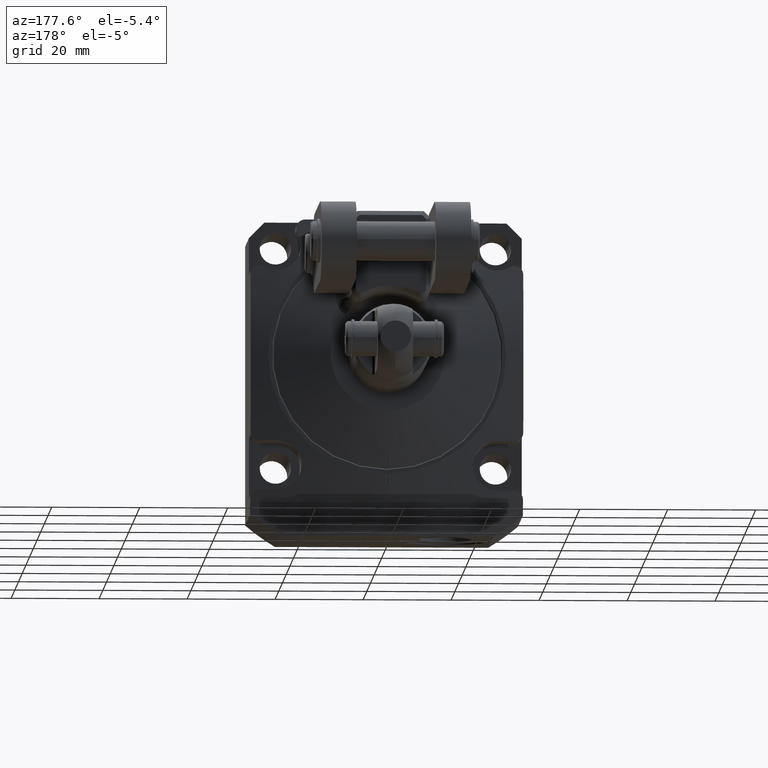
[diagram: clean part render]
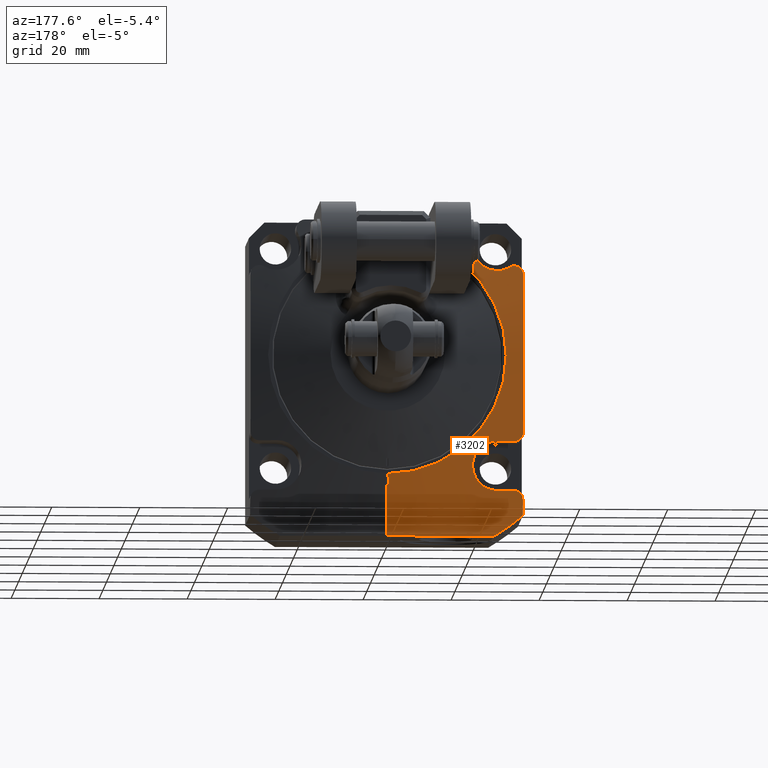
[diagram: same view with one face highlighted and labeled with its STEP entity id]
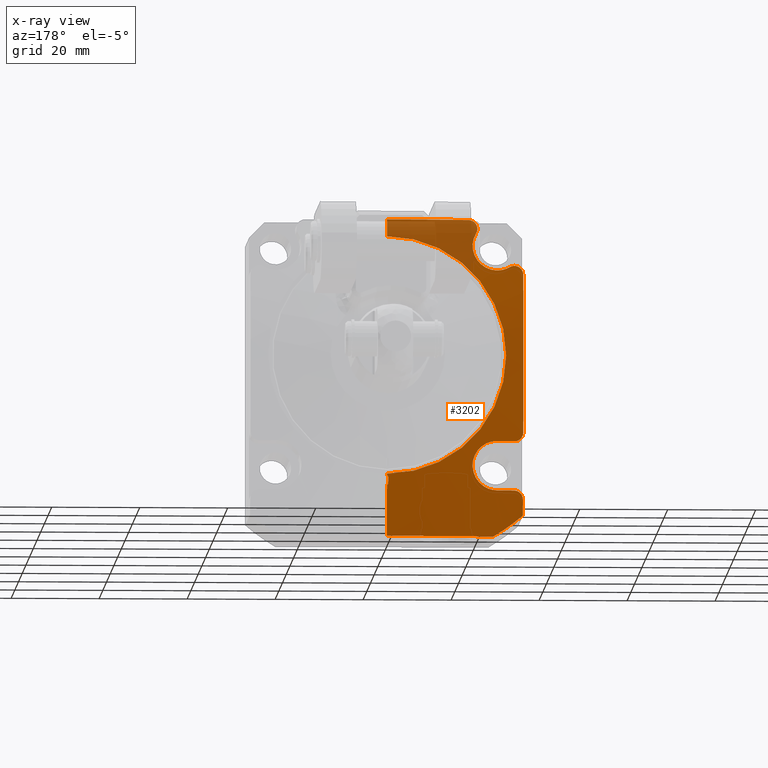
[diagram: x-ray of the same camera — body ghosted, the highlighted face saturated]
A machine part, auxiliary view. The second image highlights one B-rep face of the part: STEP entity #3202.
The next image is the same camera in x-ray: the body ghosted, the highlighted face saturated — about 15% of this face is hidden behind the body in this view.
In plain terms, the highlighted conical surface has half-angle 80 deg.
Its self-contained STEP definition (entity closure, byte-faithful):
#747=CARTESIAN_POINT('',(0.E0,1.060175145626E0,0.E0));
#748=DIRECTION('',(0.E0,-1.E0,0.E0));
#749=DIRECTION('',(-6.5088E-1,0.E0,-7.591806277823E-1));
#750=AXIS2_PLACEMENT_3D('',#747,#748,#749);
#1082=CARTESIAN_POINT('',(0.E0,1.199579130900E0,-1.084400712734E0));
#1097=CARTESIAN_POINT('',(0.E0,1.185860924864E0,-1.162200525222E0));
#1367=CARTESIAN_POINT('',(-1.1414E0,1.098318896118E0,-1.2035E0));
#1368=CARTESIAN_POINT('',(-1.114290929159E0,1.101608243191E0,-1.2035E0));
#1369=CARTESIAN_POINT('',(-1.061031755912E0,1.107947105747E0,-1.2035E0));
#1370=CARTESIAN_POINT('',(-1.009690802491E0,1.113808483846E0,-1.2035E0));
#1371=CARTESIAN_POINT('',(-9.845E-1,1.116620899816E0,-1.2035E0));
#1376=CARTESIAN_POINT('',(-1.2204E0,1.078625608446E0,-1.2825E0));
#1377=CARTESIAN_POINT('',(-1.2204E0,1.079679064940E0,-1.274252874675E0));
#1378=CARTESIAN_POINT('',(-1.217797744459E0,1.082093038357E0,
-1.257755515178E0));
#1379=CARTESIAN_POINT('',(-1.206424666769E0,1.086320344520E0,
-1.235359772559E0));
#1380=CARTESIAN_POINT('',(-1.188614549425E0,1.090764848129E0,
-1.217521549491E0));
#1381=CARTESIAN_POINT('',(-1.166153438891E0,1.094971450994E0,
-1.206098933734E0));
#1382=CARTESIAN_POINT('',(-1.149647818973E0,1.097318126325E0,-1.2035E0));
#1383=CARTESIAN_POINT('',(-1.1414E0,1.098318896118E0,-1.2035E0));
#1388=CARTESIAN_POINT('',(-1.2204E0,1.078625608446E0,-1.2825E0));
#1389=CARTESIAN_POINT('',(-1.2204E0,1.075721603347E0,-1.305234393049E0));
#1390=CARTESIAN_POINT('',(-1.2204E0,1.069743135455E0,-1.351462810067E0));
#1391=CARTESIAN_POINT('',(-1.2204E0,1.063421807781E0,-1.399210244665E0));
#1392=CARTESIAN_POINT('',(-1.2204E0,1.060175145626E0,-1.423463677092E0));
#1397=CARTESIAN_POINT('',(-9.542688300474E-1,1.060175145626E0,-1.614E0));
#1398=CARTESIAN_POINT('',(-8.732184138812E-1,1.067448646352E0,-1.614E0));
#1399=CARTESIAN_POINT('',(-7.122521230273E-1,1.080506054890E0,-1.614E0));
#1400=CARTESIAN_POINT('',(-4.767928833368E-1,1.094932953708E0,-1.614E0));
#1401=CARTESIAN_POINT('',(-2.393675511649E-1,1.104090646537E0,-1.614E0));
#1402=CARTESIAN_POINT('',(-7.998421784758E-2,1.106196487591E0,-1.614E0));
#1403=CARTESIAN_POINT('',(0.E0,1.106196487591E0,-1.614E0));
#1408=DIRECTION('',(0.E0,-1.736481776669E-1,-9.848077530122E-1));
#1409=VECTOR('',#1408,4.587692099253E-1);
#1410=CARTESIAN_POINT('',(0.E0,1.185860924864E0,-1.162200525222E0));
#1411=LINE('',#1410,#1409);
#1415=CARTESIAN_POINT('',(-9.583054859522E-3,1.187521949368E0,
-1.152740554533E0));
#1416=CARTESIAN_POINT('',(-9.583079634758E-3,1.187288388368E0,
-1.154065190348E0));
#1417=CARTESIAN_POINT('',(-9.060584980096E-3,1.186861859063E0,
-1.156488735613E0));
#1418=CARTESIAN_POINT('',(-6.903941518249E-3,1.186304644381E0,
-1.159664633900E0));
#1419=CARTESIAN_POINT('',(-3.684307100118E-3,1.185944706915E0,
-1.161721238546E0));
#1420=CARTESIAN_POINT('',(-1.293205266570E-3,1.185860924864E0,
-1.162200525222E0));
#1421=CARTESIAN_POINT('',(0.E0,1.185860924864E0,-1.162200525222E0));
#1426=CARTESIAN_POINT('',(-9.581894481622E-3,1.197904117912E0,
-1.093858216876E0));
#1427=CARTESIAN_POINT('',(-9.582029995993E-3,1.196753370346E0,
-1.100384679821E0));
#1428=CARTESIAN_POINT('',(-9.582296413478E-3,1.194449990667E0,
-1.113448285042E0));
#1429=CARTESIAN_POINT('',(-9.582682887298E-3,1.190989267719E0,
-1.133075730910E0));
#1430=CARTESIAN_POINT('',(-9.582932193043E-3,1.188678350267E0,
-1.146182053536E0));
#1431=CARTESIAN_POINT('',(-9.583054859522E-3,1.187521949368E0,
-1.152740554533E0));
#1436=CARTESIAN_POINT('',(0.E0,1.199579130900E0,-1.084400712734E0));
#1437=CARTESIAN_POINT('',(-1.305238752785E-3,1.199579130900E0,
-1.084400712734E0));
#1438=CARTESIAN_POINT('',(-3.710159623274E-3,1.199492945435E0,
-1.084885014403E0));
#1439=CARTESIAN_POINT('',(-6.982609886188E-3,1.199118091957E0,
-1.086994155909E0));
#1440=CARTESIAN_POINT('',(-9.124056162192E-3,1.198537029883E0,
-1.090272823199E0));
#1441=CARTESIAN_POINT('',(-9.581868420949E-3,1.198125417361E0,
-1.092603117415E0));
#1442=CARTESIAN_POINT('',(-9.581894481622E-3,1.197904117912E0,
-1.093858216876E0));
#1447=DIRECTION('',(-1.575943921262E-14,-1.736481776669E-1,-9.848077530122E-1));
#1448=VECTOR('',#1447,1.97E-2);
#1449=CARTESIAN_POINT('',(0.E0,1.203E0,-1.065E0));
#1450=LINE('',#1449,#1448);
#1454=DIRECTION('',(0.E0,-1.736481776669E-1,9.848077530122E-1));
#1455=VECTOR('',#1454,1.573911248423E-1);
#1456=CARTESIAN_POINT('',(0.E0,1.203E0,1.065E0));
#1457=LINE('',#1456,#1455);
#1461=CARTESIAN_POINT('',(0.E0,1.175669317990E0,1.22E0));
#1462=CARTESIAN_POINT('',(-4.963832308144E-2,1.175669317990E0,1.22E0));
#1463=CARTESIAN_POINT('',(-1.484258948280E-1,1.174597958380E0,1.22E0));
#1464=CARTESIAN_POINT('',(-2.953042230433E-1,1.169929776295E0,1.22E0));
#1465=CARTESIAN_POINT('',(-4.403871013855E-1,1.162500350986E0,1.22E0));
#1466=CARTESIAN_POINT('',(-5.845064690806E-1,1.152625583837E0,1.22E0));
#1467=CARTESIAN_POINT('',(-6.819810984913E-1,1.144451361543E0,1.22E0));
#1468=CARTESIAN_POINT('',(-7.309023856579E-1,1.140018143830E0,1.22E0));
#1473=CARTESIAN_POINT('',(-7.981312834197E-1,1.151220946163E0,
1.099511744966E0));
#1474=CARTESIAN_POINT('',(-8.023792531289E-1,1.149798682686E0,
1.106395291190E0));
#1475=CARTESIAN_POINT('',(-8.087152687614E-1,1.146998850180E0,
1.121419918563E0));
#1476=CARTESIAN_POINT('',(-8.109920010367E-1,1.143286847002E0,
1.145688176956E0));
#1477=CARTESIAN_POINT('',(-8.059298247709E-1,1.140377184131E0,
1.169375714302E0));
#1478=CARTESIAN_POINT('',(-7.940774391229E-1,1.138480748190E0,
1.190424952522E0));
#1479=CARTESIAN_POINT('',(-7.765091805685E-1,1.137737441018E0,
1.206981644710E0));
#1480=CARTESIAN_POINT('',(-7.548255635522E-1,1.138201195409E0,
1.217561347145E0));
#1481=CARTESIAN_POINT('',(-7.388832443451E-1,1.139294923201E0,1.22E0));
#1482=CARTESIAN_POINT('',(-7.309023856579E-1,1.140018143830E0,1.22E0));
#1487=CARTESIAN_POINT('',(-7.981312834197E-1,1.151220946163E0,
1.099511744966E0));
#1488=CARTESIAN_POINT('',(-7.894609193710E-1,1.154123872259E0,
1.085462009259E0));
#1489=CARTESIAN_POINT('',(-7.753496372646E-1,1.159867103217E0,
1.055462981855E0));
#1490=CARTESIAN_POINT('',(-7.647945247882E-1,1.167839744292E0,
1.006986781389E0));
#1491=CARTESIAN_POINT('',(-7.653153428927E-1,1.174679013903E0,
9.575181744862E-1));
#1492=CARTESIAN_POINT('',(-7.767571870162E-1,1.179916252696E0,
9.096517609083E-1));
#1493=CARTESIAN_POINT('',(-7.983328507148E-1,1.183187631600E0,
8.657890649145E-1));
#1494=CARTESIAN_POINT('',(-8.288943967029E-1,1.184279626647E0,
8.278674803769E-1));
#1495=CARTESIAN_POINT('',(-8.669601251099E-1,1.183122291722E0,
7.976035423600E-1));
#1496=CARTESIAN_POINT('',(-9.107718433823E-1,1.179808812352E0,
7.763761456664E-1));
#1497=CARTESIAN_POINT('',(-9.584282178444E-1,1.174562815118E0,
7.652262813753E-1));
#1498=CARTESIAN_POINT('',(-1.007628899861E0,1.167740237262E0,
7.648791955473E-1));
#1499=CARTESIAN_POINT('',(-1.055884556483E0,1.159790836035E0,
7.755054912923E-1));
#1500=CARTESIAN_POINT('',(-1.085790802442E0,1.154059074911E0,
7.896335753704E-1));
#1501=CARTESIAN_POINT('',(-1.099805704698E0,1.151160175604E0,
7.983130120978E-1));
#1506=CARTESIAN_POINT('',(-1.2204E0,1.139935231463E0,7.311496694299E-1));
#1507=CARTESIAN_POINT('',(-1.2204E0,1.139211472772E0,7.391364042759E-1));
#1508=CARTESIAN_POINT('',(-1.217957723005E0,1.138117197337E0,
7.550904486226E-1));
#1509=CARTESIAN_POINT('',(-1.207362850826E0,1.137654441237E0,
7.767867941637E-1));
#1510=CARTESIAN_POINT('',(-1.190783889815E0,1.138400543230E0,
7.943591205923E-1));
#1511=CARTESIAN_POINT('',(-1.169709458597E0,1.140301286755E0,
8.062040799562E-1));
#1512=CARTESIAN_POINT('',(-1.145998693723E0,1.143216238925E0,
8.112463430883E-1));
#1513=CARTESIAN_POINT('',(-1.121714485795E0,1.146933751959E0,
8.089378837423E-1));
#1514=CARTESIAN_POINT('',(-1.106687682307E0,1.149736679403E0,
8.025750246413E-1));
#1515=CARTESIAN_POINT('',(-1.099805704698E0,1.151160175604E0,
7.983130120978E-1));
#1520=CARTESIAN_POINT('',(-1.2204E0,1.139935231463E0,7.311496694299E-1));
#1521=CARTESIAN_POINT('',(-1.2204E0,1.144843051740E0,6.769914815009E-1));
#1522=CARTESIAN_POINT('',(-1.2204E0,1.153752859441E0,5.697359584724E-1));
#1523=CARTESIAN_POINT('',(-1.2204E0,1.164077935633E0,4.135100727669E-1));
#1524=CARTESIAN_POINT('',(-1.2204E0,1.171417218307E0,2.574341524689E-1));
#1525=CARTESIAN_POINT('',(-1.2204E0,1.175462210368E0,1.005520395260E-1));
#1526=CARTESIAN_POINT('',(-1.2204E0,1.175962019095E0,-5.705013868437E-2));
#1527=CARTESIAN_POINT('',(-1.2204E0,1.172875639359E0,-2.142650519396E-1));
#1528=CARTESIAN_POINT('',(-1.2204E0,1.166406008619E0,-3.706185634802E-1));
#1529=CARTESIAN_POINT('',(-1.2204E0,1.156901034157E0,-5.263308404294E-1));
#1530=CARTESIAN_POINT('',(-1.2204E0,1.148528556807E0,-6.328316876778E-1));
#1531=CARTESIAN_POINT('',(-1.2204E0,1.143889002284E0,-6.865E-1));
#1536=CARTESIAN_POINT('',(-1.1414E0,1.148456694158E0,-7.655E-1));
#1537=CARTESIAN_POINT('',(-1.149730314378E0,1.147236786776E0,-7.655E-1));
#1538=CARTESIAN_POINT('',(-1.166340169948E0,1.145056959626E0,
-7.628442139112E-1));
#1539=CARTESIAN_POINT('',(-1.188699582864E0,1.142835760369E0,
-7.513968622548E-1));
#1540=CARTESIAN_POINT('',(-1.206396554363E0,1.141833451756E0,
-7.336605200255E-1));
#1541=CARTESIAN_POINT('',(-1.217779690736E0,1.142126902009E0,
-7.113075880267E-1));
#1542=CARTESIAN_POINT('',(-1.2204E0,1.143173726617E0,-6.947739921969E-1));
#1543=CARTESIAN_POINT('',(-1.2204E0,1.143889002284E0,-6.865E-1));
#1548=CARTESIAN_POINT('',(-1.1414E0,1.148456694158E0,-7.655E-1));
#1549=CARTESIAN_POINT('',(-1.113839332614E0,1.152492731701E0,-7.655E-1));
#1550=CARTESIAN_POINT('',(-1.060128563122E0,1.160267443001E0,-7.655E-1));
#1551=CARTESIAN_POINT('',(-1.009239190007E0,1.167449151524E0,-7.655E-1));
#1552=CARTESIAN_POINT('',(-9.845E-1,1.170892829914E0,-7.655E-1));
#1557=CARTESIAN_POINT('',(-9.845E-1,1.170892829914E0,-7.655E-1));
#1558=CARTESIAN_POINT('',(-9.668143304058E-1,1.173354663069E0,-7.655E-1));
#1559=CARTESIAN_POINT('',(-9.315557886835E-1,1.177747081485E0,
-7.698032248155E-1));
#1560=CARTESIAN_POINT('',(-8.819775922452E-1,1.182234042671E0,
-7.885952571486E-1));
#1561=CARTESIAN_POINT('',(-8.384517070441E-1,1.184250302153E0,
-8.185069591678E-1));
#1562=CARTESIAN_POINT('',(-8.033352329886E-1,1.183633077884E0,
-8.577768332006E-1));
#1563=CARTESIAN_POINT('',(-7.784923121543E-1,1.180455211033E0,
-9.042053155698E-1));
#1564=CARTESIAN_POINT('',(-7.652755951321E-1,1.174960402367E0,
-9.555456877013E-1));
#1565=CARTESIAN_POINT('',(-7.646895459464E-1,1.167601425565E0,
-1.008775834169E0));
#1566=CARTESIAN_POINT('',(-7.769415963294E-1,1.158927117389E0,
-1.060904355173E0));
#1567=CARTESIAN_POINT('',(-8.015274974601E-1,1.149546714809E0,
-1.108772061912E0));
#1568=CARTESIAN_POINT('',(-8.369666188078E-1,1.140096513913E0,
-1.149293640645E0));
#1569=CARTESIAN_POINT('',(-8.811801277854E-1,1.131109945977E0,
-1.180070046790E0));
#1570=CARTESIAN_POINT('',(-9.314120125367E-1,1.123070296904E0,
-1.199201424619E0));
#1571=CARTESIAN_POINT('',(-9.668217543204E-1,1.118594579713E0,-1.2035E0));
#1572=CARTESIAN_POINT('',(-9.845E-1,1.116620899816E0,-1.2035E0));
#1653=CARTESIAN_POINT('',(0.E0,1.203E0,0.E0));
#1654=DIRECTION('',(0.E0,-1.E0,0.E0));
#1655=DIRECTION('',(0.E0,0.E0,1.E0));
#1656=AXIS2_PLACEMENT_3D('',#1653,#1654,#1655);
#1934=CARTESIAN_POINT('',(-9.542688300474E-1,1.060175145626E0,-1.614E0));
#1935=VERTEX_POINT('',#1934);
#1952=CARTESIAN_POINT('',(0.E0,1.203E0,-1.065E0));
#1953=CARTESIAN_POINT('',(0.E0,1.203E0,1.065E0));
#1954=VERTEX_POINT('',#1952);
#1955=VERTEX_POINT('',#1953);
#1956=VERTEX_POINT('',#1403);
#1957=CARTESIAN_POINT('',(-1.2204E0,1.060175145626E0,-1.423463677092E0));
#1958=VERTEX_POINT('',#1957);
#1959=CARTESIAN_POINT('',(0.E0,1.175669317990E0,1.22E0));
#1960=VERTEX_POINT('',#1959);
#1973=VERTEX_POINT('',#1557);
#1974=VERTEX_POINT('',#1572);
#1979=VERTEX_POINT('',#1548);
#2024=VERTEX_POINT('',#1487);
#2025=VERTEX_POINT('',#1501);
#2049=VERTEX_POINT('',#1082);
#2051=VERTEX_POINT('',#1097);
#2052=VERTEX_POINT('',#1442);
#2053=VERTEX_POINT('',#1431);
#2054=VERTEX_POINT('',#1367);
#2137=VERTEX_POINT('',#1543);
#2140=VERTEX_POINT('',#1506);
#2141=VERTEX_POINT('',#1482);
#2145=VERTEX_POINT('',#1376);
#3164=CARTESIAN_POINT('',(0.E0,1.131587572813E0,0.E0));
#3165=DIRECTION('',(0.E0,-1.E0,0.E0));
#3166=DIRECTION('',(0.E0,0.E0,1.E0));
#3167=AXIS2_PLACEMENT_3D('',#3164,#3165,#3166);
#3168=CONICAL_SURFACE('',#3167,1.47E0,8.E1);
#3170=ORIENTED_EDGE('',*,*,#3169,.F.);
#3171=ORIENTED_EDGE('',*,*,#3155,.F.);
#3172=ORIENTED_EDGE('',*,*,#3145,.T.);
#3173=ORIENTED_EDGE('',*,*,#2693,.T.);
#3174=ORIENTED_EDGE('',*,*,#2644,.T.);
#3175=ORIENTED_EDGE('',*,*,#2893,.F.);
#3177=ORIENTED_EDGE('',*,*,#3176,.F.);
#3179=ORIENTED_EDGE('',*,*,#3178,.F.);
#3181=ORIENTED_EDGE('',*,*,#3180,.F.);
#3182=ORIENTED_EDGE('',*,*,#2885,.F.);
#3184=ORIENTED_EDGE('',*,*,#3183,.F.);
#3185=ORIENTED_EDGE('',*,*,#2881,.T.);
#3186=ORIENTED_EDGE('',*,*,#2993,.T.);
#3188=ORIENTED_EDGE('',*,*,#3187,.F.);
#3190=ORIENTED_EDGE('',*,*,#3189,.T.);
#3192=ORIENTED_EDGE('',*,*,#3191,.F.);
#3193=ORIENTED_EDGE('',*,*,#3137,.T.);
#3195=ORIENTED_EDGE('',*,*,#3194,.F.);
#3197=ORIENTED_EDGE('',*,*,#3196,.T.);
#3199=ORIENTED_EDGE('',*,*,#3198,.T.);
#3200=EDGE_LOOP('',(#3170,#3171,#3172,#3173,#3174,#3175,#3177,#3179,#3181,#3182,
#3184,#3185,#3186,#3188,#3190,#3192,#3193,#3195,#3197,#3199));
#3201=FACE_OUTER_BOUND('',#3200,.F.);
#751=CIRCLE('',#750,1.875E0);
#1372=B_SPLINE_CURVE_WITH_KNOTS('',3,(#1367,#1368,#1369,#1370,#1371),
.UNSPECIFIED.,.F.,.F.,(4,1,4),(0.E0,5.E-1,1.E0),.UNSPECIFIED.);
#1384=B_SPLINE_CURVE_WITH_KNOTS('',3,(#1376,#1377,#1378,#1379,#1380,#1381,#1382,
#1383),.UNSPECIFIED.,.F.,.F.,(4,1,1,1,1,4),(0.E0,2.E-1,4.E-1,6.E-1,8.E-1,1.E0),
.UNSPECIFIED.);
#1393=B_SPLINE_CURVE_WITH_KNOTS('',3,(#1388,#1389,#1390,#1391,#1392),
.UNSPECIFIED.,.F.,.F.,(4,1,4),(0.E0,5.E-1,1.E0),.UNSPECIFIED.);
#1404=B_SPLINE_CURVE_WITH_KNOTS('',3,(#1397,#1398,#1399,#1400,#1401,#1402,
#1403),.UNSPECIFIED.,.F.,.F.,(4,1,1,1,4),(0.E0,2.5E-1,5.E-1,7.5E-1,1.E0),
.UNSPECIFIED.);
#1422=B_SPLINE_CURVE_WITH_KNOTS('',3,(#1415,#1416,#1417,#1418,#1419,#1420,
#1421),.UNSPECIFIED.,.F.,.F.,(4,1,1,1,4),(0.E0,2.5E-1,5.E-1,7.5E-1,1.E0),
.UNSPECIFIED.);
#1432=B_SPLINE_CURVE_WITH_KNOTS('',3,(#1426,#1427,#1428,#1429,#1430,#1431),
.UNSPECIFIED.,.F.,.F.,(4,1,1,4),(0.E0,3.333333333333E-1,6.666666666667E-1,1.E0),
.UNSPECIFIED.);
#1443=B_SPLINE_CURVE_WITH_KNOTS('',3,(#1436,#1437,#1438,#1439,#1440,#1441,
#1442),.UNSPECIFIED.,.F.,.F.,(4,1,1,1,4),(0.E0,2.5E-1,5.E-1,7.5E-1,1.E0),
.UNSPECIFIED.);
#1469=B_SPLINE_CURVE_WITH_KNOTS('',3,(#1461,#1462,#1463,#1464,#1465,#1466,#1467,
#1468),.UNSPECIFIED.,.F.,.F.,(4,1,1,1,1,4),(0.E0,2.E-1,4.E-1,6.E-1,8.E-1,1.E0),
.UNSPECIFIED.);
#1483=B_SPLINE_CURVE_WITH_KNOTS('',3,(#1473,#1474,#1475,#1476,#1477,#1478,#1479,
#1480,#1481,#1482),.UNSPECIFIED.,.F.,.F.,(4,1,1,1,1,1,1,4),(0.E0,
1.428571428571E-1,2.857142857143E-1,4.285714285714E-1,5.714285714286E-1,
7.142857142857E-1,8.571428571429E-1,1.E0),.UNSPECIFIED.);
#1502=B_SPLINE_CURVE_WITH_KNOTS('',3,(#1487,#1488,#1489,#1490,#1491,#1492,#1493,
#1494,#1495,#1496,#1497,#1498,#1499,#1500,#1501),.UNSPECIFIED.,.F.,.F.,(4,1,1,1,
1,1,1,1,1,1,1,1,4),(0.E0,8.333333333333E-2,1.666666666667E-1,2.5E-1,
3.333333333333E-1,4.166666666667E-1,5.E-1,5.833333333333E-1,6.666666666667E-1,
7.5E-1,8.333333333333E-1,9.166666666667E-1,1.E0),.UNSPECIFIED.);
#1516=B_SPLINE_CURVE_WITH_KNOTS('',3,(#1506,#1507,#1508,#1509,#1510,#1511,#1512,
#1513,#1514,#1515),.UNSPECIFIED.,.F.,.F.,(4,1,1,1,1,1,1,4),(0.E0,
1.428571428571E-1,2.857142857143E-1,4.285714285714E-1,5.714285714286E-1,
7.142857142857E-1,8.571428571429E-1,1.E0),.UNSPECIFIED.);
#1532=B_SPLINE_CURVE_WITH_KNOTS('',3,(#1520,#1521,#1522,#1523,#1524,#1525,#1526,
#1527,#1528,#1529,#1530,#1531),.UNSPECIFIED.,.F.,.F.,(4,1,1,1,1,1,1,1,1,4),
(0.E0,1.111111111111E-1,2.222222222222E-1,3.333333333333E-1,4.444444444444E-1,
5.555555555556E-1,6.666666666667E-1,7.777777777778E-1,8.888888888889E-1,1.E0),
.UNSPECIFIED.);
#1544=B_SPLINE_CURVE_WITH_KNOTS('',3,(#1536,#1537,#1538,#1539,#1540,#1541,#1542,
#1543),.UNSPECIFIED.,.F.,.F.,(4,1,1,1,1,4),(0.E0,2.E-1,4.E-1,6.E-1,8.E-1,1.E0),
.UNSPECIFIED.);
#1553=B_SPLINE_CURVE_WITH_KNOTS('',3,(#1548,#1549,#1550,#1551,#1552),
.UNSPECIFIED.,.F.,.F.,(4,1,4),(0.E0,5.E-1,1.E0),.UNSPECIFIED.);
#1573=B_SPLINE_CURVE_WITH_KNOTS('',3,(#1557,#1558,#1559,#1560,#1561,#1562,#1563,
#1564,#1565,#1566,#1567,#1568,#1569,#1570,#1571,#1572),.UNSPECIFIED.,.F.,.F.,(4,
1,1,1,1,1,1,1,1,1,1,1,1,4),(0.E0,7.692307692308E-2,1.538461538462E-1,
2.307692307692E-1,3.076923076923E-1,3.846153846154E-1,4.615384615385E-1,
5.384615384615E-1,6.153846153846E-1,6.923076923077E-1,7.692307692308E-1,
8.461538461538E-1,9.230769230769E-1,1.E0),.UNSPECIFIED.);
#1657=CIRCLE('',#1656,1.065E0);
#2644=EDGE_CURVE('',#1935,#1956,#1404,.T.);
#2693=EDGE_CURVE('',#1958,#1935,#751,.T.);
#2881=EDGE_CURVE('',#1955,#1960,#1457,.T.);
#2885=EDGE_CURVE('',#1954,#2049,#1450,.T.);
#2893=EDGE_CURVE('',#2051,#1956,#1411,.T.);
#2993=EDGE_CURVE('',#1960,#2141,#1469,.T.);
#3137=EDGE_CURVE('',#2140,#2137,#1532,.T.);
#3145=EDGE_CURVE('',#2145,#1958,#1393,.T.);
#3155=EDGE_CURVE('',#2145,#2054,#1384,.T.);
#3169=EDGE_CURVE('',#2054,#1974,#1372,.T.);
#3176=EDGE_CURVE('',#2053,#2051,#1422,.T.);
#3178=EDGE_CURVE('',#2052,#2053,#1432,.T.);
#3180=EDGE_CURVE('',#2049,#2052,#1443,.T.);
#3183=EDGE_CURVE('',#1955,#1954,#1657,.T.);
#3187=EDGE_CURVE('',#2024,#2141,#1483,.T.);
#3189=EDGE_CURVE('',#2024,#2025,#1502,.T.);
#3191=EDGE_CURVE('',#2140,#2025,#1516,.T.);
#3194=EDGE_CURVE('',#1979,#2137,#1544,.T.);
#3196=EDGE_CURVE('',#1979,#1973,#1553,.T.);
#3198=EDGE_CURVE('',#1973,#1974,#1573,.T.);
#3202=ADVANCED_FACE('',(#3201),#3168,.T.);